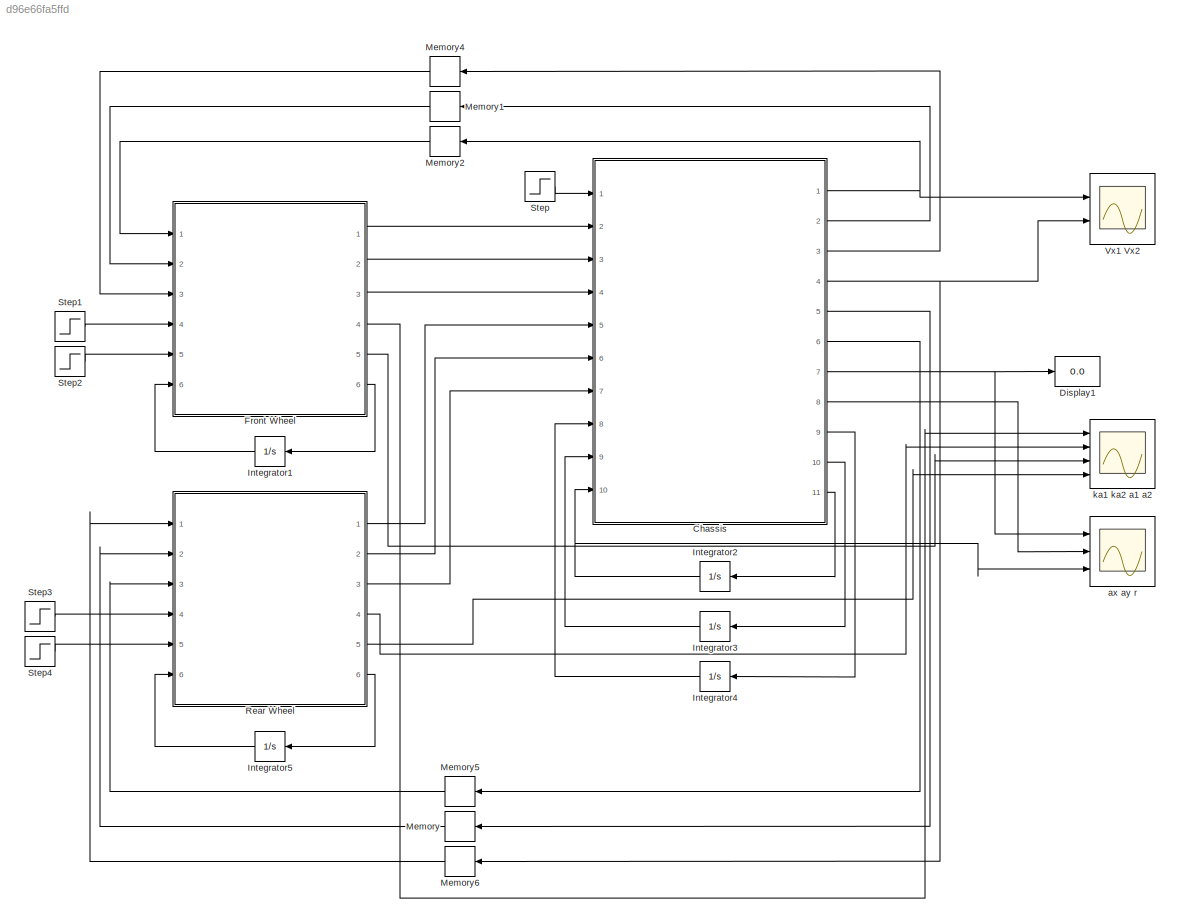
MODEL slx_d96e66fa5ffd
KIND model
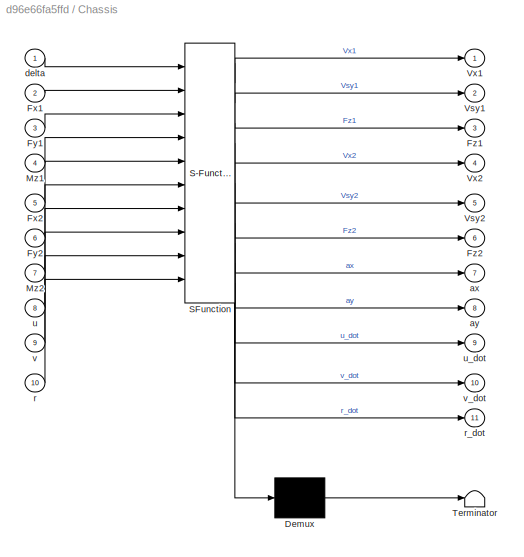
BLOCK [SubSystem] Chassis
  ErrorFcn = Stateflow.Translate.translate
  PermitHierarchicalResolution = ExplicitOnly
  Ports = [10, 11]
  RequestExecContextInheritance = off
  SFBlockType = MATLAB Function
  TreatAsAtomicUnit = on
BLOCK [Demux] Chassis/ Demux 
  Outputs = 1
  Ports = [1, 1]
BLOCK [S-Function] Chassis/ SFunction 
  EnableBusSupport = on
  FunctionName = sf_sfun
  PortCounts = [10 12]
  Ports = [10, 12]
  Tag = Stateflow S-Function vehicle_model_skeleton_train 3
BLOCK [Terminator] Chassis/ Terminator 
BLOCK [Inport] Chassis/Fx1
  IconDisplay = Port number
  Port = 2
BLOCK [Inport] Chassis/Fx2
  IconDisplay = Port number
  Port = 5
BLOCK [Inport] Chassis/Fy1
  IconDisplay = Port number
  Port = 3
BLOCK [Inport] Chassis/Fy2
  IconDisplay = Port number
  Port = 6
BLOCK [Outport] Chassis/Fz1
  IconDisplay = Port number
  Port = 3
BLOCK [Outport] Chassis/Fz2
  IconDisplay = Port number
  Port = 6
BLOCK [Inport] Chassis/Mz1
  IconDisplay = Port number
  Port = 4
BLOCK [Inport] Chassis/Mz2
  IconDisplay = Port number
  Port = 7
BLOCK [Outport] Chassis/Vsy1
  IconDisplay = Port number
  Port = 2
BLOCK [Outport] Chassis/Vsy2
  IconDisplay = Port number
  Port = 5
BLOCK [Outport] Chassis/Vx1
  IconDisplay = Port number
BLOCK [Outport] Chassis/Vx2
  IconDisplay = Port number
  Port = 4
BLOCK [Outport] Chassis/ax
  IconDisplay = Port number
  Port = 7
BLOCK [Outport] Chassis/ay
  IconDisplay = Port number
  Port = 8
BLOCK [Inport] Chassis/delta
  IconDisplay = Port number
BLOCK [Inport] Chassis/r
  IconDisplay = Port number
  Port = 10
BLOCK [Outport] Chassis/r_dot
  IconDisplay = Port number
  Port = 11
BLOCK [Inport] Chassis/u
  IconDisplay = Port number
  Port = 8
BLOCK [Outport] Chassis/u_dot
  IconDisplay = Port number
  Port = 9
BLOCK [Inport] Chassis/v
  IconDisplay = Port number
  Port = 9
BLOCK [Outport] Chassis/v_dot
  IconDisplay = Port number
  Port = 10
BLOCK [Display] Display1
  Decimation = 1
  Ports = [1]
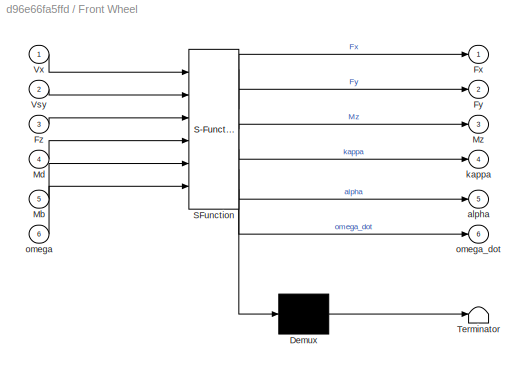
BLOCK [SubSystem] Front Wheel
  ErrorFcn = Stateflow.Translate.translate
  PermitHierarchicalResolution = ExplicitOnly
  Ports = [6, 6]
  RequestExecContextInheritance = off
  SFBlockType = MATLAB Function
  TreatAsAtomicUnit = on
BLOCK [Demux] Front Wheel/ Demux 
  Outputs = 1
  Ports = [1, 1]
BLOCK [S-Function] Front Wheel/ SFunction 
  EnableBusSupport = on
  FunctionName = sf_sfun
  PortCounts = [6 7]
  Ports = [6, 7]
  Tag = Stateflow S-Function vehicle_model_skeleton_train 1
BLOCK [Terminator] Front Wheel/ Terminator 
BLOCK [Outport] Front Wheel/Fx
  IconDisplay = Port number
BLOCK [Outport] Front Wheel/Fy
  IconDisplay = Port number
  Port = 2
BLOCK [Inport] Front Wheel/Fz
  IconDisplay = Port number
  Port = 3
BLOCK [Inport] Front Wheel/Mb
  IconDisplay = Port number
  Port = 5
BLOCK [Inport] Front Wheel/Md
  IconDisplay = Port number
  Port = 4
BLOCK [Outport] Front Wheel/Mz
  IconDisplay = Port number
  Port = 3
BLOCK [Inport] Front Wheel/Vsy
  IconDisplay = Port number
  Port = 2
BLOCK [Inport] Front Wheel/Vx
  IconDisplay = Port number
BLOCK [Outport] Front Wheel/alpha
  IconDisplay = Port number
  Port = 5
BLOCK [Outport] Front Wheel/kappa
  IconDisplay = Port number
  Port = 4
BLOCK [Inport] Front Wheel/omega
  IconDisplay = Port number
  Port = 6
BLOCK [Outport] Front Wheel/omega_dot
  IconDisplay = Port number
  Port = 6
BLOCK [Integrator] Integrator1
  InitialCondition = 66.67
  Ports = [1, 1]
BLOCK [Integrator] Integrator2
  Ports = [1, 1]
BLOCK [Integrator] Integrator3
  Ports = [1, 1]
BLOCK [Integrator] Integrator4
  InitialCondition = 20
  Ports = [1, 1]
BLOCK [Integrator] Integrator5
  InitialCondition = 66.67
  Ports = [1, 1]
BLOCK [Memory] Memory
BLOCK [Memory] Memory1
BLOCK [Memory] Memory2
  X0 = 20
BLOCK [Memory] Memory4
  X0 = (1500*9.8)/2
BLOCK [Memory] Memory5
  X0 = (1500*9.8)/2
BLOCK [Memory] Memory6
  X0 = 20
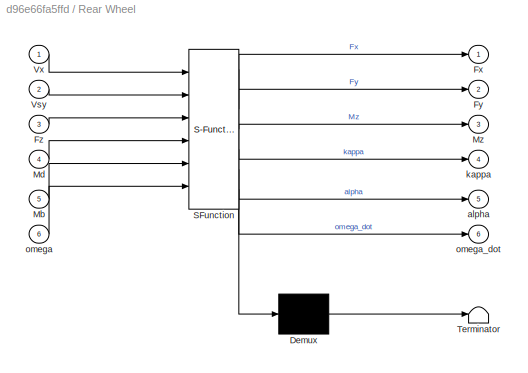
BLOCK [SubSystem] Rear Wheel
  ErrorFcn = Stateflow.Translate.translate
  PermitHierarchicalResolution = ExplicitOnly
  Ports = [6, 6]
  RequestExecContextInheritance = off
  SFBlockType = MATLAB Function
  TreatAsAtomicUnit = on
BLOCK [Demux] Rear Wheel/ Demux 
  Outputs = 1
  Ports = [1, 1]
BLOCK [S-Function] Rear Wheel/ SFunction 
  EnableBusSupport = on
  FunctionName = sf_sfun
  PortCounts = [6 7]
  Ports = [6, 7]
  Tag = Stateflow S-Function vehicle_model_skeleton_train 2
BLOCK [Terminator] Rear Wheel/ Terminator 
BLOCK [Outport] Rear Wheel/Fx
  IconDisplay = Port number
BLOCK [Outport] Rear Wheel/Fy
  IconDisplay = Port number
  Port = 2
BLOCK [Inport] Rear Wheel/Fz
  IconDisplay = Port number
  Port = 3
BLOCK [Inport] Rear Wheel/Mb
  IconDisplay = Port number
  Port = 5
BLOCK [Inport] Rear Wheel/Md
  IconDisplay = Port number
  Port = 4
BLOCK [Outport] Rear Wheel/Mz
  IconDisplay = Port number
  Port = 3
BLOCK [Inport] Rear Wheel/Vsy
  IconDisplay = Port number
  Port = 2
BLOCK [Inport] Rear Wheel/Vx
  IconDisplay = Port number
BLOCK [Outport] Rear Wheel/alpha
  IconDisplay = Port number
  Port = 5
BLOCK [Outport] Rear Wheel/kappa
  IconDisplay = Port number
  Port = 4
BLOCK [Inport] Rear Wheel/omega
  IconDisplay = Port number
  Port = 6
BLOCK [Outport] Rear Wheel/omega_dot
  IconDisplay = Port number
  Port = 6
BLOCK [Step] Step
  After = 0.02
  SampleTime = 0
BLOCK [Step] Step1
  After = 0
  SampleTime = 0
  Time = 0
BLOCK [Step] Step2
  After = 0
  SampleTime = 0
  Time = 0
BLOCK [Step] Step3
  After = 0
  SampleTime = 0
  Time = 0
BLOCK [Step] Step4
  After = 0
  SampleTime = 0
  Time = 0
BLOCK [Scope] Vx1 Vx2
  DataFormat = StructureWithTime
  Floating = off
  LegendLocations = 0.90435     0.91958    0.074777     0.03048\n0.90435     0.43734    0.074777     0.03048
  LimitDataPoints = off
  NumInputPorts = 2
  Ports = [2]
  SaveName = ax2
  SaveToWorkspace = on
  ShowLegends = on
  TickLabels = on
  YMax = 5~5
  YMin = -5~-5
  ZoomMode = yonly
BLOCK [Scope] ax ay r 
  DataFormat = StructureWithTime
  Floating = off
  LimitDataPoints = off
  NumInputPorts = 3
  Ports = [3]
  SaveName = ax1
  SaveToWorkspace = on
  ShowLegends = on
  TickLabels = on
  TimeRange = 2
  YMax = 5~5~5
  YMin = -5~-5~-5
  ZoomMode = yonly
BLOCK [Scope] ka1 ka2 a1 a2 
  DataFormat = StructureWithTime
  Floating = off
  LegendLocations = 0.88875     0.91837    0.075354    0.022032\n0.89005     0.67792    0.074221    0.022032\n 0.8907     0.43555    0.073654    0.022032\n  0.892       0.197    0.072521    0.022032
  LimitDataPoints = off
  NumInputPorts = 4
  Ports = [4]
  SaveName = ax
  SaveToWorkspace = on
  ShowLegends = on
  TickLabels = on
  TimeRange = 2
  YMax = 8.975e-06~8.975e-06~-0.016575~-0.01605
  YMin = 8.8e-06~8.8e-06~-0.016725~-0.0162
  ZoomMode = xonly
NET Chassis:1 -> Memory2:1, Vx1 Vx2:1
LINE Chassis:10 -> Integrator3:1
LINE Chassis:11 -> Integrator2:1
LINE Chassis:2 -> Memory1:1
LINE Chassis:3 -> Memory4:1
NET Chassis:4 -> Memory6:1, Vx1 Vx2:2
LINE Chassis:5 -> Memory:1
LINE Chassis:6 -> Memory5:1
NET Chassis:7 -> Display1:1, ax ay r :1
LINE Chassis:8 -> ax ay r :2
LINE Chassis:9 -> Integrator4:1
LINE Front Wheel:1 -> Chassis:2
LINE Front Wheel:2 -> Chassis:3
LINE Front Wheel:3 -> Chassis:4
LINE Front Wheel:4 -> ka1 ka2 a1 a2 :1
LINE Front Wheel:5 -> ka1 ka2 a1 a2 :3
LINE Front Wheel:6 -> Integrator1:1
LINE Integrator1:1 -> Front Wheel:6
NET Integrator2:1 -> Chassis:10, ax ay r :3
LINE Integrator3:1 -> Chassis:9
LINE Integrator4:1 -> Chassis:8
LINE Integrator5:1 -> Rear Wheel:6
LINE Memory1:1 -> Front Wheel:2
LINE Memory2:1 -> Front Wheel:1
LINE Memory4:1 -> Front Wheel:3
LINE Memory5:1 -> Rear Wheel:3
LINE Memory6:1 -> Rear Wheel:1
LINE Memory:1 -> Rear Wheel:2
LINE Rear Wheel:1 -> Chassis:5
LINE Rear Wheel:2 -> Chassis:6
LINE Rear Wheel:3 -> Chassis:7
LINE Rear Wheel:4 -> ka1 ka2 a1 a2 :2
LINE Rear Wheel:5 -> ka1 ka2 a1 a2 :4
LINE Rear Wheel:6 -> Integrator5:1
LINE Step1:1 -> Front Wheel:4
LINE Step2:1 -> Front Wheel:5
LINE Step3:1 -> Rear Wheel:4
LINE Step4:1 -> Rear Wheel:5
LINE Step:1 -> Chassis:1
note: NET lines group one-source signal fan-out (src -> all destinations, sorted); 1:1 wires keep LINE
